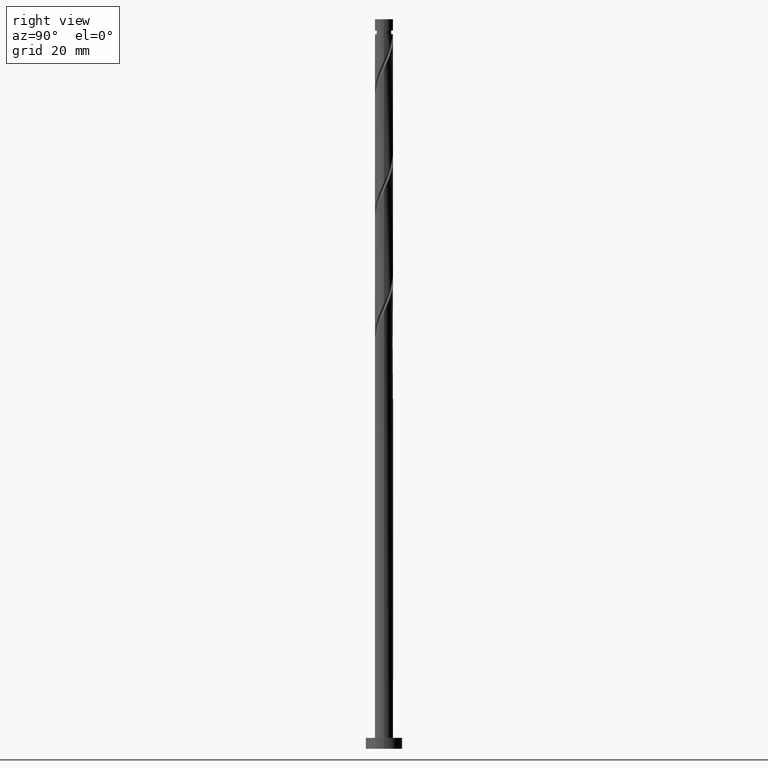
[diagram: clean part render]
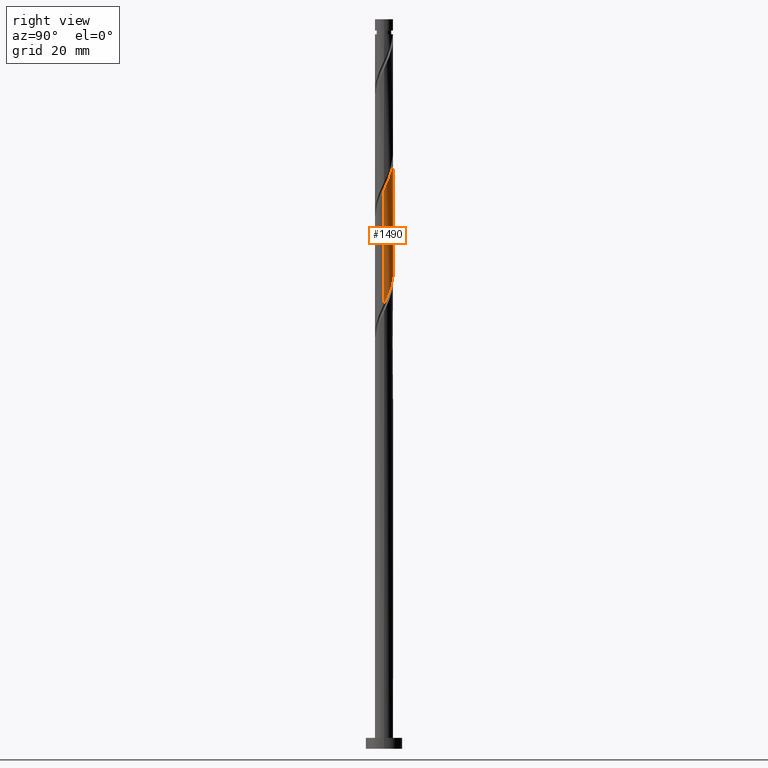
[diagram: same view with one face highlighted and labeled with its STEP entity id]
A machine part, right view. The second image highlights one B-rep face of the part: STEP entity #1490.
In plain terms, the highlighted cylindrical surface (edge-blend (fillet) strip) has radius 2.5 mm, axis along (-0, -0, -1).
Its self-contained STEP definition (entity closure, byte-faithful):
#39 = CARTESIAN_POINT ( 'NONE',  ( 2.495279123588686865, 0.1535646293339463786, 122.2727451169219108 ) ) ;
#41 = DIRECTION ( 'NONE',  ( -1.000000000000000000, 0.000000000000000000, 0.000000000000000000 ) ) ;
#53 = CARTESIAN_POINT ( 'NONE',  ( -0.1749450994641887080, 2.515496290581588301, 161.8560784502552679 ) ) ;
#60 = CARTESIAN_POINT ( 'NONE',  ( 2.500000000000003553, 6.355358388538470584E-16, 153.1536229061563006 ) ) ;
#118 = CARTESIAN_POINT ( 'NONE',  ( -2.449999999999999734, 0.4974937185533113149, 137.5505228946997249 ) ) ;
#153 = EDGE_LOOP ( 'NONE', ( #1486, #1340, #1310, #284 ) ) ;
#167 = CARTESIAN_POINT ( 'NONE',  ( 1.409255045694378650, 2.091011141037077081, 127.1338562280330251 ) ) ;
#175 = CARTESIAN_POINT ( 'NONE',  ( 2.370509098548531313, 0.7941578015096449894, 123.6616340058107966 ) ) ;
#188 = CARTESIAN_POINT ( 'NONE',  ( -0.8200423376424318400, 2.384503709418418715, 163.2449673391441536 ) ) ;
#218 = CYLINDRICAL_SURFACE ( 'NONE', #1681, 2.500000000000000000 ) ;
#255 = VERTEX_POINT ( 'NONE', #1251 ) ;
#281 = CARTESIAN_POINT ( 'NONE',  ( 0.8200423376424332833, 2.384503709418414275, 128.5227451169218966 ) ) ;
#284 = ORIENTED_EDGE ( 'NONE', *, *, #697, .F. ) ;
#315 = CARTESIAN_POINT ( 'NONE',  ( 2.384503709418420048, 0.8200423376424310629, 154.9116340058108108 ) ) ;
#337 = CARTESIAN_POINT ( 'NONE',  ( -2.370509098548532645, 0.7941578015096485421, 168.1060784502551826 ) ) ;
#344 = CARTESIAN_POINT ( 'NONE',  ( -0.4974937185533108153, 2.450000000000002842, 162.5505228946997249 ) ) ;
#353 = CARTESIAN_POINT ( 'NONE',  ( -2.091011141037077969, 1.409255045694377539, 135.4671895613663821 ) ) ;
#392 = LINE ( 'NONE', #901, #1542 ) ;
#432 = CARTESIAN_POINT ( 'NONE',  ( 2.500000000000000888, 2.938418643171334019E-15, 121.9474228832431209 ) ) ;
#454 = CARTESIAN_POINT ( 'NONE',  ( 0.4820743581320889870, 2.475061956595793866, 160.4671895613663821 ) ) ;
#473 = CARTESIAN_POINT ( 'NONE',  ( -2.475061956595794754, 0.4820743581320875992, 168.8005228946997534 ) ) ;
#492 = CARTESIAN_POINT ( 'NONE',  ( 0.000000000000000000, 0.000000000000000000, 200.0000000000000000 ) ) ;
#536 = CARTESIAN_POINT ( 'NONE',  ( 1.655842198490353967, 1.873015379995218055, 126.4394117835885822 ) ) ;
#546 = CARTESIAN_POINT ( 'NONE',  ( -0.4820743581320866555, 2.475061956595791646, 131.3005228946996965 ) ) ;
#590 = CARTESIAN_POINT ( 'NONE',  ( -1.655842198490355077, 1.873015379995222052, 165.3283006724774964 ) ) ;
#632 = CARTESIAN_POINT ( 'NONE',  ( -1.380630431920283341, 2.084192795893799133, 133.3838562280330393 ) ) ;
#661 = VERTEX_POINT ( 'NONE', #1051 ) ;
#697 = EDGE_CURVE ( 'NONE', #1597, #1626, #392, .T. ) ;
#715 = CARTESIAN_POINT ( 'NONE',  ( -2.265956240501273200, 1.106241244887208985, 167.4116340058108108 ) ) ;
#722 = CARTESIAN_POINT ( 'NONE',  ( 2.091011141037082410, 1.409255045694377317, 156.3005228946996965 ) ) ;
#729 = CARTESIAN_POINT ( 'NONE',  ( 1.106241244887210096, 2.265956240501273200, 159.0783006724774680 ) ) ;
#736 = CARTESIAN_POINT ( 'NONE',  ( 2.237757425227750119, 1.114648691668403968, 155.6060784502553247 ) ) ;
#853 = EDGE_CURVE ( 'NONE', #1626, #255, #1665, .T. ) ;
#877 = CARTESIAN_POINT ( 'NONE',  ( -2.500000000000003109, 2.063622253219550189E-15, 169.8202895728229578 ) ) ;
#884 = CARTESIAN_POINT ( 'NONE',  ( -2.084192795893801797, 1.380630431920285117, 166.7171895613662969 ) ) ;
#893 = CARTESIAN_POINT ( 'NONE',  ( -1.873015379995218943, 1.655842198490353301, 134.7727451169219535 ) ) ;
#901 = CARTESIAN_POINT ( 'NONE',  ( -2.500000000000000000, 0.000000000000000000, 200.0000000000000000 ) ) ;
#915 = CARTESIAN_POINT ( 'NONE',  ( -0.7941578015096464327, 2.370509098548530424, 131.9949673391441252 ) ) ;
#921 = DIRECTION ( 'NONE',  ( -0.000000000000000000, -0.000000000000000000, -1.000000000000000000 ) ) ;
#953 = CARTESIAN_POINT ( 'NONE',  ( 2.500000000000000000, 0.07685487914418386024, 122.1105865712712415 ) ) ;
#1004 = CARTESIAN_POINT ( 'NONE',  ( 2.450000000000002842, 0.4974937185533110373, 154.2171895613663537 ) ) ;
#1014 = VECTOR ( 'NONE', #921, 1000.000000000000000 ) ;
#1025 = CARTESIAN_POINT ( 'NONE',  ( -2.237757425227747010, 1.114648691668404634, 136.1616340058108108 ) ) ;
#1036 = DIRECTION ( 'NONE',  ( -0.000000000000000000, -0.000000000000000000, -1.000000000000000000 ) ) ;
#1051 = CARTESIAN_POINT ( 'NONE',  ( 2.500000000000003553, 6.355358388538470584E-16, 153.1536229061563006 ) ) ;
#1099 = CARTESIAN_POINT ( 'NONE',  ( -2.500000000000000444, 3.342170823149074243E-15, 138.6140895499097496 ) ) ;
#1103 = CARTESIAN_POINT ( 'NONE',  ( 2.084192795893799577, 1.380630431920282675, 125.0505228946996965 ) ) ;
#1111 = CARTESIAN_POINT ( 'NONE',  ( 1.902429351286330172, 1.655019618953359251, 125.7449673391441678 ) ) ;
#1144 = EDGE_CURVE ( 'NONE', #661, #1597, #1249, .T. ) ;
#1150 = CARTESIAN_POINT ( 'NONE',  ( -1.902429351286331061, 1.655019618953362359, 166.0227451169219250 ) ) ;
#1184 = CARTESIAN_POINT ( 'NONE',  ( -1.106241244887206987, 2.265956240501270980, 132.6894117835885822 ) ) ;
#1190 = CARTESIAN_POINT ( 'NONE',  ( 2.500000000000000000, 3.061616997868383141E-16, 200.0000000000000000 ) ) ;
#1216 = CARTESIAN_POINT ( 'NONE',  ( 0.1749450994641913448, 2.515496290581585193, 129.9116340058107824 ) ) ;
#1226 = CARTESIAN_POINT ( 'NONE',  ( 2.265956240501271868, 1.106241244887205433, 124.3560784502552394 ) ) ;
#1235 = CARTESIAN_POINT ( 'NONE',  ( 2.475061956595791646, 0.4820743581320850457, 122.9671895613663537 ) ) ;
#1249 =( BOUNDED_CURVE ( )  B_SPLINE_CURVE ( 2, ( #60, #1540, #1004, #315, #736, #722, #1402, #1274, #1424, #729, #1282, #454, #1695, #53, #344, #188, #1561, #1555, #590, #1150, #884, #715, #337, #473, #1264, #1679, #877 ),
 .UNSPECIFIED., .F., .F. ) 
 B_SPLINE_CURVE_WITH_KNOTS ( ( 3, 2, 2, 2, 2, 2, 2, 2, 2, 2, 2, 2, 2, 3 ),
 ( 0.4295317669814467942, 0.4375000000000000000, 0.4479166666666666297, 0.4583333333333333703, 0.4687500000000000000, 0.4791666666666666297, 0.4895833333333333703, 0.5000000000000000000, 0.5104166666666667407, 0.5208333333333332593, 0.5312500000000000000, 0.5416666666666667407, 0.5520833333333332593, 0.5545317669814462391 ),
 .UNSPECIFIED. ) 
 CURVE ( )  GEOMETRIC_REPRESENTATION_ITEM ( )  RATIONAL_B_SPLINE_CURVE ( ( 0.9062941362546536039, 0.9031415850403585743, 0.9090909090909338186, 0.9013135103398520753, 0.9090909090909338186, 0.9013135103398520753, 0.9090909090909338186, 0.9013135103398520753, 0.9090909090909338186, 0.9013135103398520753, 0.9090909090909338186, 0.9013135103398520753, 0.9090909090909338186, 0.9013135103398520753, 0.9090909090909338186, 0.9013135103398520753, 0.9090909090909338186, 0.9013135103398520753, 0.9090909090909338186, 0.9013135103398520753, 0.9090909090909338186, 0.9013135103398520753, 0.9090909090909338186, 0.9013135103398520753, 0.9090909090909338186, 0.9072628343904275416, 0.9062941362546541590 ) ) 
 REPRESENTATION_ITEM ( '' )  );
#1251 = CARTESIAN_POINT ( 'NONE',  ( 2.500000000000000444, 2.938418643171334019E-15, 121.9474228832431209 ) ) ;
#1264 = CARTESIAN_POINT ( 'NONE',  ( -2.495279123588690418, 0.1535646293339485713, 169.4949673391441820 ) ) ;
#1274 = CARTESIAN_POINT ( 'NONE',  ( 1.655019618953363914, 1.902429351286329950, 157.6894117835885822 ) ) ;
#1282 = CARTESIAN_POINT ( 'NONE',  ( 0.7941578015096493193, 2.370509098548532645, 159.7727451169218682 ) ) ;
#1310 = ORIENTED_EDGE ( 'NONE', *, *, #853, .F. ) ;
#1313 = FACE_OUTER_BOUND ( 'NONE', #153, .T. ) ;
#1340 = ORIENTED_EDGE ( 'NONE', *, *, #1431, .T. ) ;
#1356 = CARTESIAN_POINT ( 'NONE',  ( 1.114648691668405522, 2.237757425227745234, 127.8283006724774538 ) ) ;
#1380 = CARTESIAN_POINT ( 'NONE',  ( 0.4974937185533118145, 2.449999999999999734, 129.2171895613663537 ) ) ;
#1402 = CARTESIAN_POINT ( 'NONE',  ( 1.873015379995222940, 1.655842198490353523, 156.9949673391440967 ) ) ;
#1424 = CARTESIAN_POINT ( 'NONE',  ( 1.380630431920286005, 2.084192795893801797, 158.3838562280330677 ) ) ;
#1431 = EDGE_CURVE ( 'NONE', #661, #255, #1448, .T. ) ;
#1444 = CARTESIAN_POINT ( 'NONE',  ( -1.655019618953360139, 1.902429351286329506, 134.0783006724774964 ) ) ;
#1448 = LINE ( 'NONE', #1190, #1014 ) ;
#1462 = CARTESIAN_POINT ( 'NONE',  ( -2.500000000000000444, 3.342170823149074243E-15, 138.6140895499097212 ) ) ;
#1484 = CARTESIAN_POINT ( 'NONE',  ( -2.499999999999999556, 0.2512594538148090195, 138.0806631807204781 ) ) ;
#1486 = ORIENTED_EDGE ( 'NONE', *, *, #1144, .F. ) ;
#1490 = ADVANCED_FACE ( 'NONE', ( #1313 ), #218, .T. ) ;
#1527 = CARTESIAN_POINT ( 'NONE',  ( -0.1535646293339474611, 2.495279123588687753, 130.6060784502552394 ) ) ;
#1540 = CARTESIAN_POINT ( 'NONE',  ( 2.500000000000000888, 0.2512594538148170131, 153.6870492753455721 ) ) ;
#1542 = VECTOR ( 'NONE', #1606, 1000.000000000000000 ) ;
#1555 = CARTESIAN_POINT ( 'NONE',  ( -1.409255045694378872, 2.091011141037081078, 164.6338562280330393 ) ) ;
#1561 = CARTESIAN_POINT ( 'NONE',  ( -1.114648691668405300, 2.237757425227750119, 163.9394117835885538 ) ) ;
#1597 = VERTEX_POINT ( 'NONE', #1633 ) ;
#1606 = DIRECTION ( 'NONE',  ( -0.000000000000000000, -0.000000000000000000, -1.000000000000000000 ) ) ;
#1626 = VERTEX_POINT ( 'NONE', #1099 ) ;
#1633 = CARTESIAN_POINT ( 'NONE',  ( -2.500000000000003109, 2.063622253219550189E-15, 169.8202895728229578 ) ) ;
#1665 =( BOUNDED_CURVE ( )  B_SPLINE_CURVE ( 2, ( #1462, #1484, #118, #1717, #1025, #353, #893, #1444, #632, #1184, #915, #546, #1527, #1216, #1380, #281, #1356, #167, #536, #1111, #1103, #1226, #175, #1235, #39, #953, #432 ),
 .UNSPECIFIED., .F., .F. ) 
 B_SPLINE_CURVE_WITH_KNOTS ( ( 3, 2, 2, 2, 2, 2, 2, 2, 2, 2, 2, 2, 2, 3 ),
 ( 0.6795317669814464612, 0.6875000000000000000, 0.6979166666666666297, 0.7083333333333333703, 0.7187500000000000000, 0.7291666666666666297, 0.7395833333333333703, 0.7500000000000000000, 0.7604166666666666297, 0.7708333333333333703, 0.7812500000000000000, 0.7916666666666666297, 0.8020833333333333703, 0.8045317669814462391 ),
 .UNSPECIFIED. ) 
 CURVE ( )  GEOMETRIC_REPRESENTATION_ITEM ( )  RATIONAL_B_SPLINE_CURVE ( ( 0.9062941362546483859, 0.9031415850403529122, 0.9090909090909282675, 0.9013135103398466352, 0.9090909090909282675, 0.9013135103398466352, 0.9090909090909282675, 0.9013135103398466352, 0.9090909090909282675, 0.9013135103398466352, 0.9090909090909282675, 0.9013135103398466352, 0.9090909090909282675, 0.9013135103398466352, 0.9090909090909282675, 0.9013135103398466352, 0.9090909090909282675, 0.9013135103398466352, 0.9090909090909282675, 0.9013135103398466352, 0.9090909090909282675, 0.9013135103398466352, 0.9090909090909282675, 0.9013135103398466352, 0.9090909090909282675, 0.9072628343904219905, 0.9062941362546484969 ) ) 
 REPRESENTATION_ITEM ( '' )  );
#1679 = CARTESIAN_POINT ( 'NONE',  ( -2.500000000000003553, 0.07685487914418319411, 169.6571258847948229 ) ) ;
#1681 = AXIS2_PLACEMENT_3D ( 'NONE', #492, #1036, #41 ) ;
#1695 = CARTESIAN_POINT ( 'NONE',  ( 0.1535646293339501534, 2.495279123588690418, 161.1616340058107539 ) ) ;
#1717 = CARTESIAN_POINT ( 'NONE',  ( -2.384503709418415163, 0.8200423376424315069, 136.8560784502552394 ) ) ;